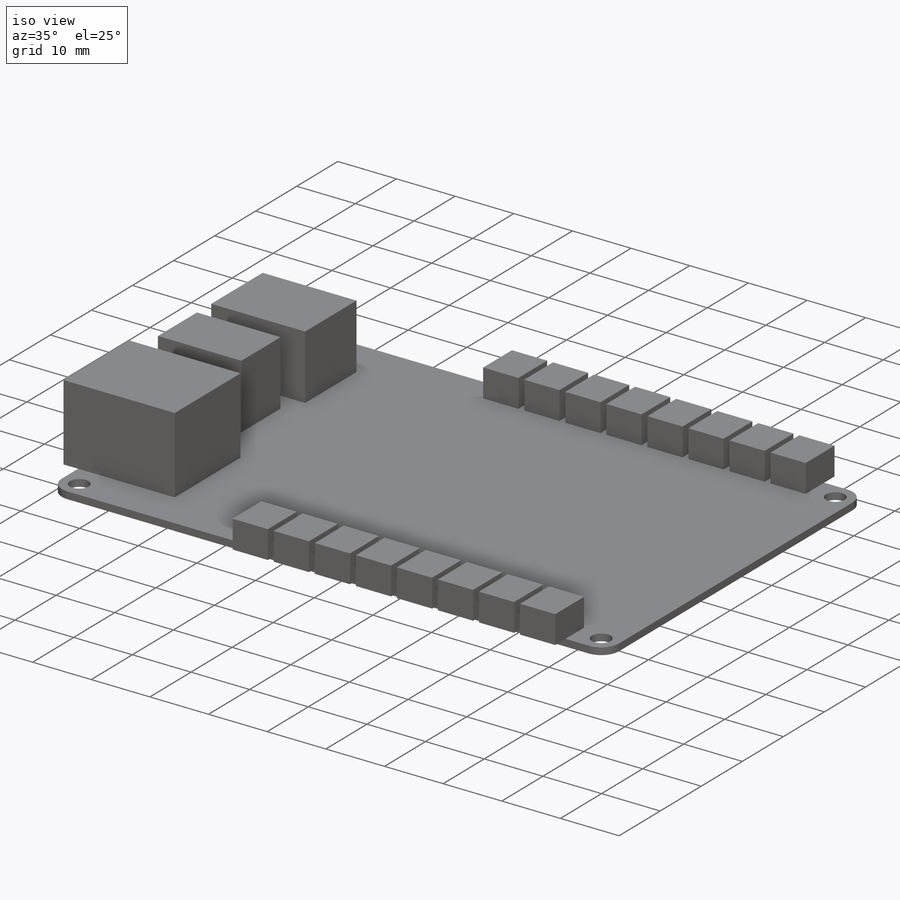
[diagram: iso view]
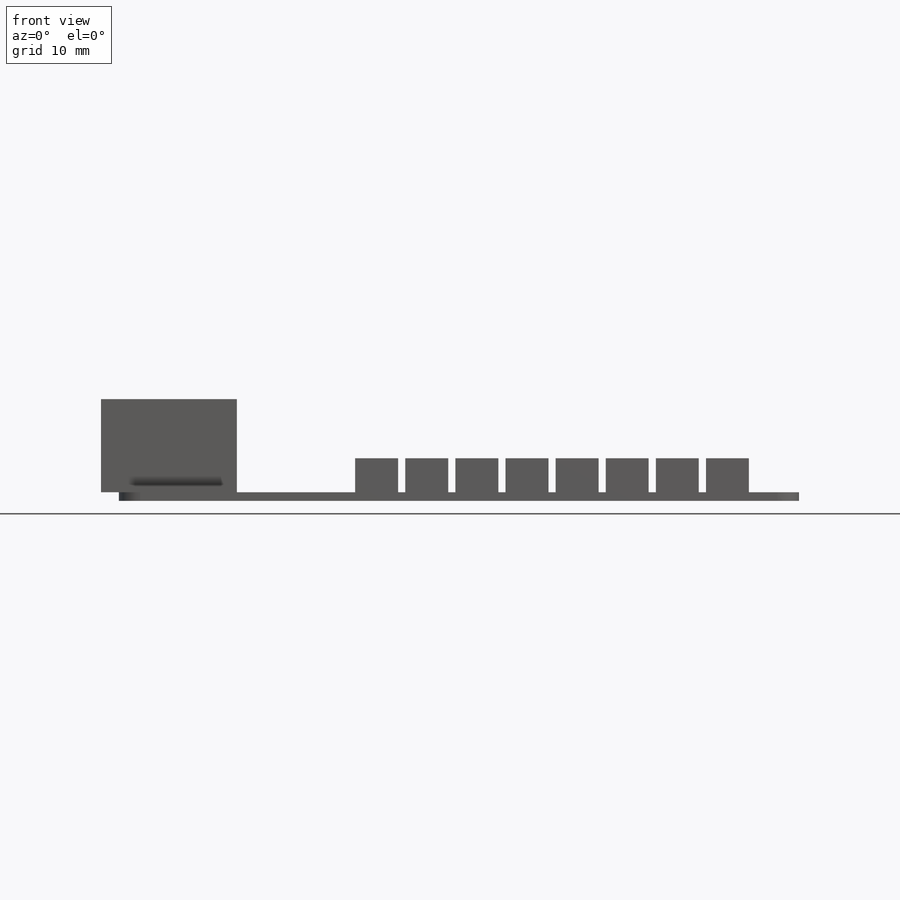
[diagram: front view]
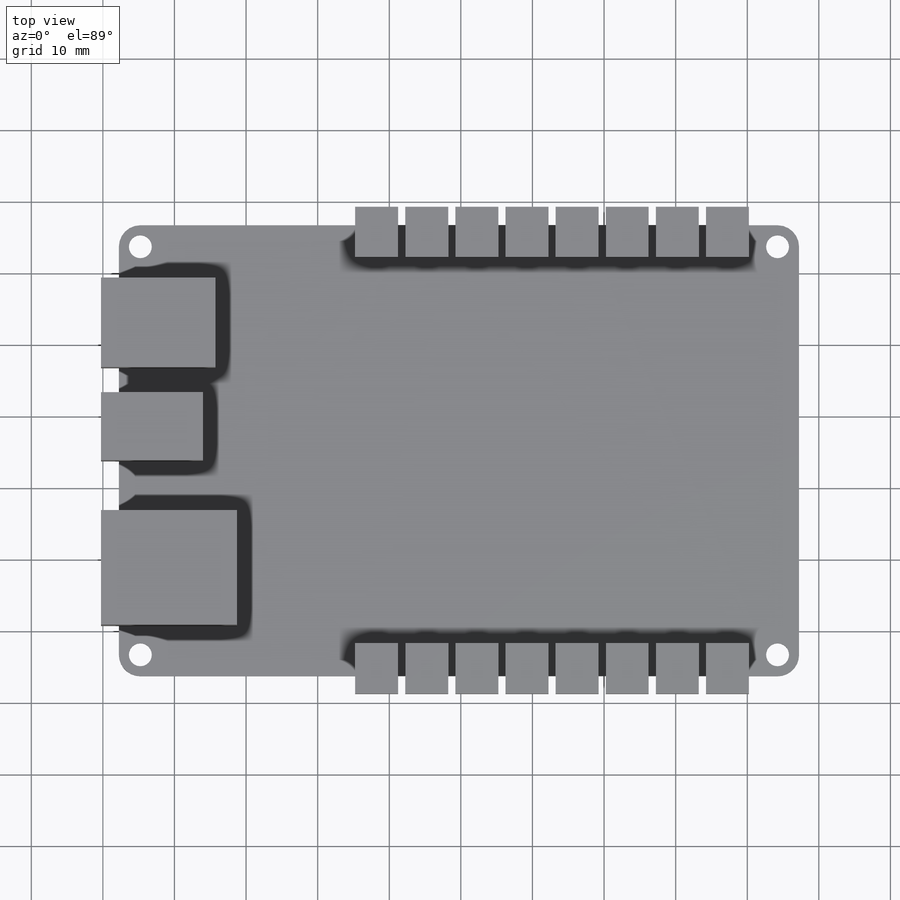
[diagram: top view]
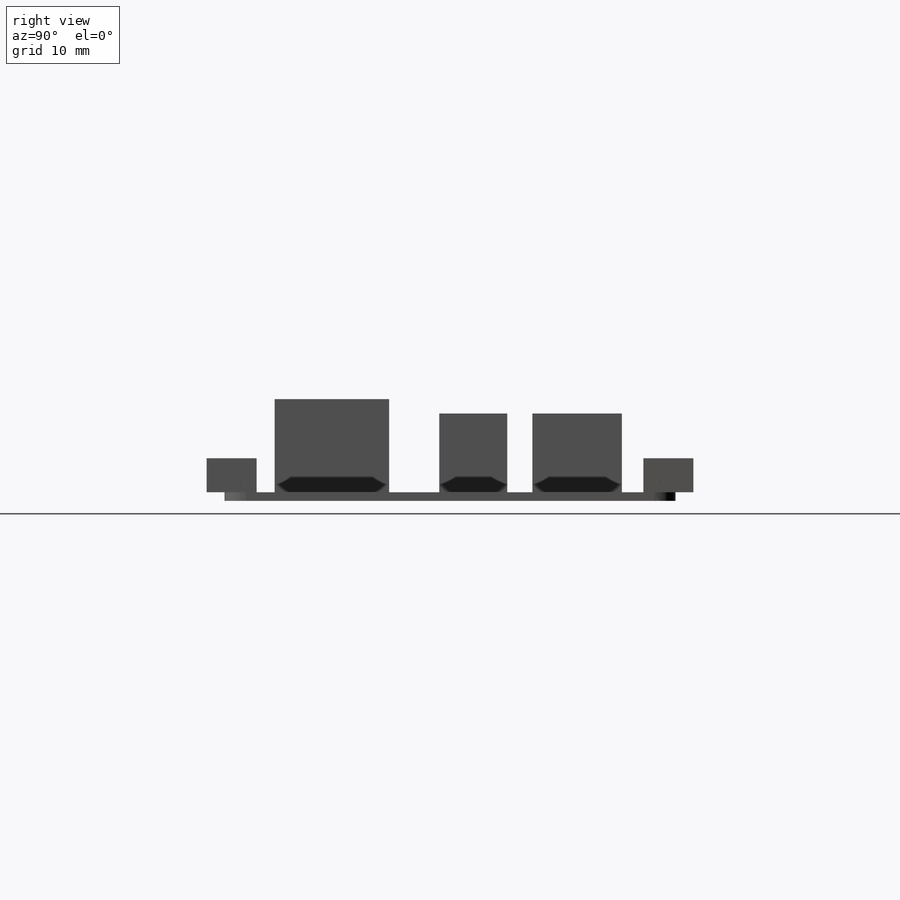
[diagram: right view]
SOLIDWORKS PART (.sldprt)
format: sldprt  version: not decoded by parser v0  size: 318,976 bytes
history: native  units: mm
features: sketch x5, extrude x5, material x1 (+12 scaffold rows collapsed)
feature tree (23):
  scaffold x12  (default folders/planes/origin — collapsed)
  material  "Material <not specified>"
  sketch  "Sketch1"  dims[D3=3.0mm D4=3.2mm D5=3.2mm D6=3.2mm D7=3.2mm D1=95.0mm D2=63.0mm]
  extrude  "pcb"  Depth=1.2mm
  sketch  "Sketch2"  dims[D1=6.0mm D2=7.0mm D4=33.0mm D5=2.5mm D3=8.0]
  extrude  "pop connectors"  Depth=4.75mm
  sketch  "usb"  dims[D1=43.0mm D2=2.5mm D3=16.0mm D4=12.5mm]
  extrude  "USB B"  Depth=11mm
  sketch  "Sketch4"  dims[D1=9.5mm D2=14.25mm D3=30.0mm D4=2.5mm]
  extrude  "DC power"  Depth=11mm
  sketch  "Sketch5"  dims[D1=16.0mm D2=7.0mm D3=2.5mm]
  extrude  "RJ45"  Depth=13mm
decode coverage: 10 of 10 modeling features carry decoded parameters
note: suppression state not decoded; provenance and decode notes live in map.json
